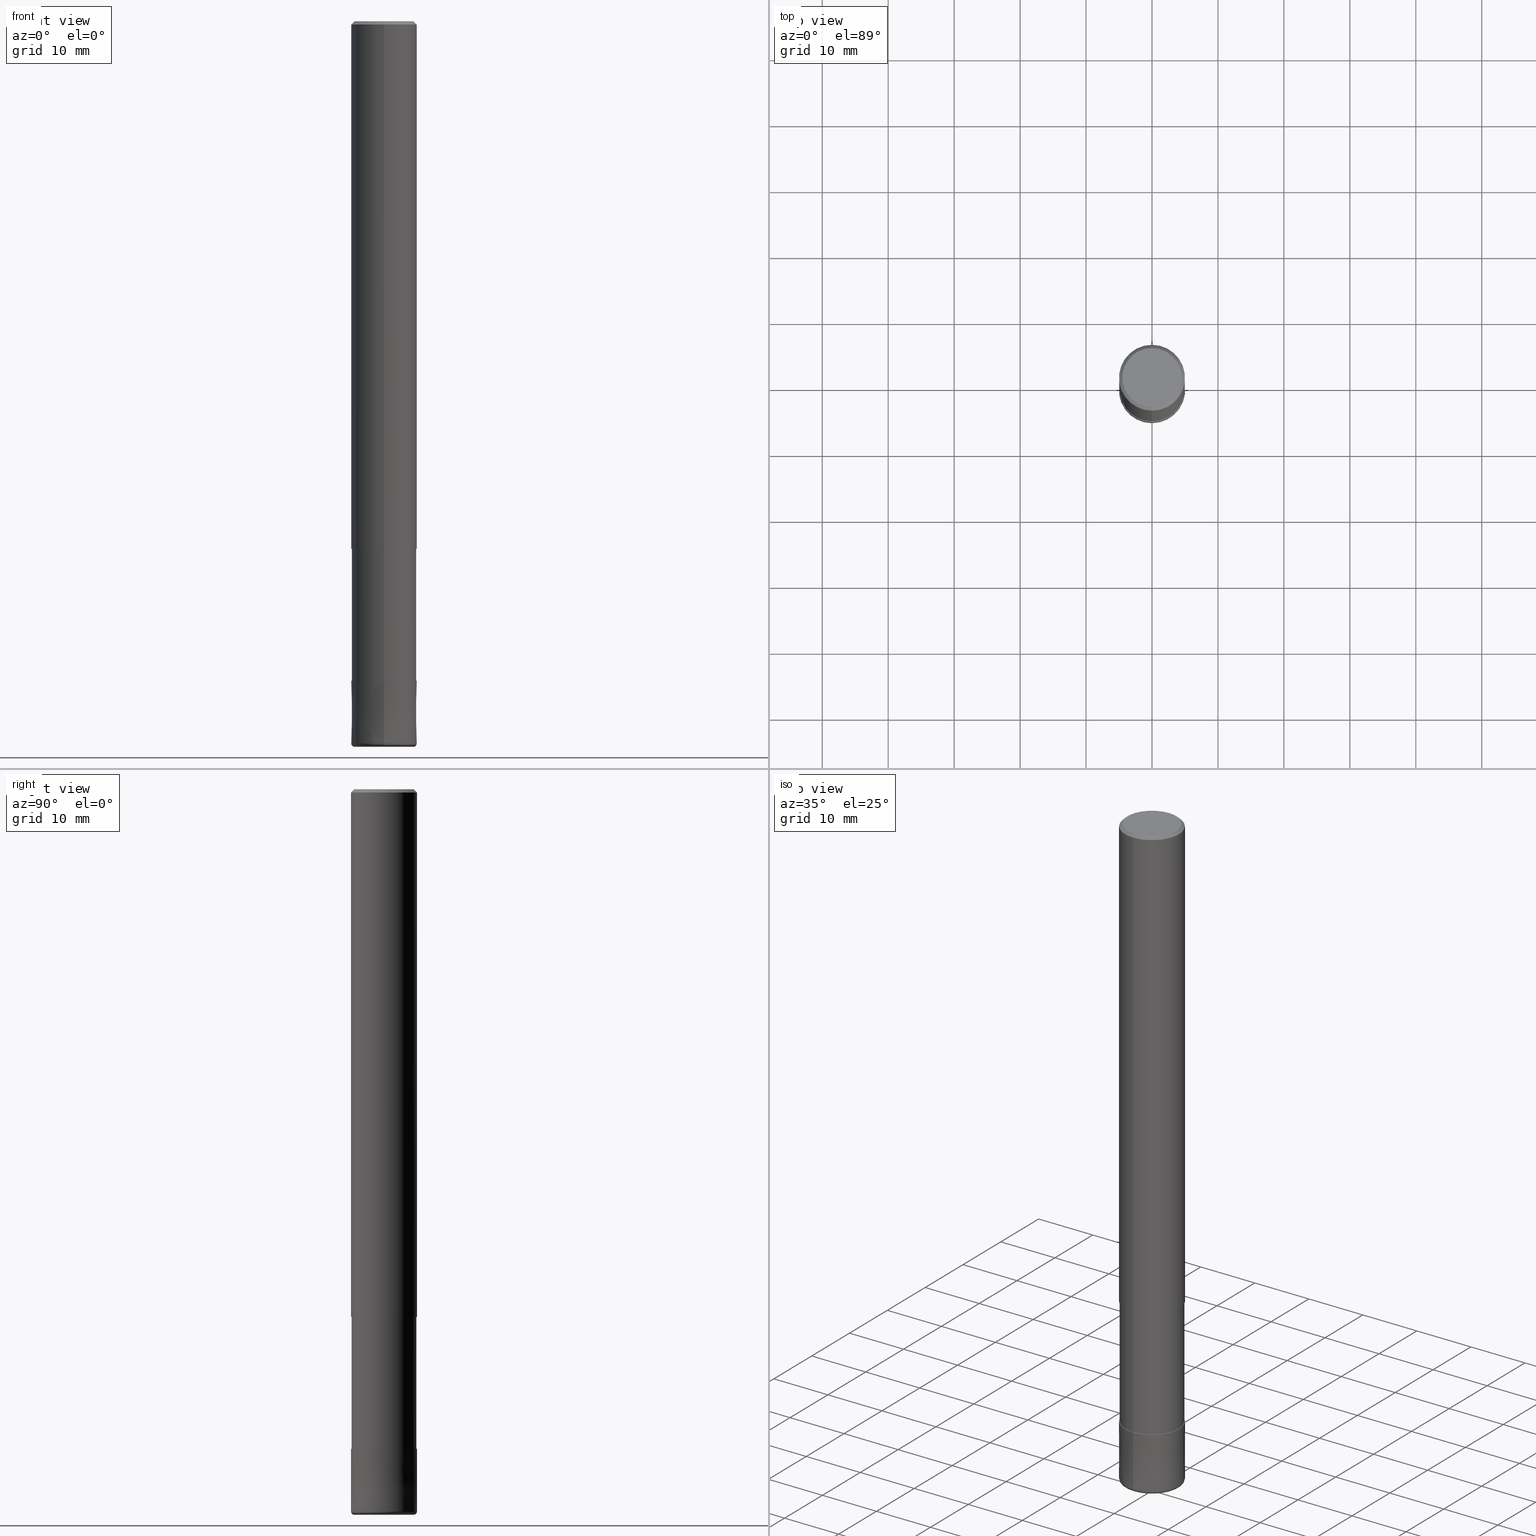
[diagram: canonical four-view strip — front | top / right | iso, engineering-drawing reading convention]
A machine part, canonical four-view strip (front | top / right | iso — engineering-drawing reading convention). The complete STEP part file that produces these views, byte-faithful:
ISO-10303-21;
HEADER;
FILE_DESCRIPTION(('no description'),'unknown implementation level');
FILE_NAME('HRRS4100-05-30-Huellk.stp','  ',('CIMSOURCE GmbH'),('CADClick - KiM GmbH - www.kimweb.de'),'unknown preprocess','ACIS','unknown authorization');
FILE_SCHEMA(('automotive_design'));
ENDSEC;
DATA;
#1=MECHANICAL_DESIGN_GEOMETRIC_PRESENTATION_REPRESENTATION(' ',(#14,#15,#16,#17,#18,#19,#20,#21,#22,#23,#24,#25,#26,#27,#28,#29,#30,#31,#32,#33,#34,#35,#36,#37,#38,#39,#40,#41,#42,#43,#44,#45,#46,#47,#48,#49,#50,#51,#52,#53,#54,#55,#56,#57,#58,#59,#60,#61,#62,#63,#64,#65,#66,#67,#68,#69,#70,#71,#72),#10);
#2=PRODUCT_DEFINITION_CONTEXT('',#73,'design');
#3=APPLICATION_PROTOCOL_DEFINITION('INTERNATIONAL STANDARD','automotive_design',1994,#73);
#4=PRODUCT_CATEGORY_RELATIONSHIP('NONE','NONE',#74,#75);
#5=SHAPE_DEFINITION_REPRESENTATION(#76,#77);
#6=PRODUCT_DEFINITION_CONTEXT('',#78,'design');
#7=APPLICATION_PROTOCOL_DEFINITION('INTERNATIONAL STANDARD','automotive_design',1994,#78);
#8=PRODUCT_CATEGORY_RELATIONSHIP('NONE','NONE',#79,#80);
#9=SHAPE_DEFINITION_REPRESENTATION(#81,#82);
#10= (GEOMETRIC_REPRESENTATION_CONTEXT(3)GLOBAL_UNCERTAINTY_ASSIGNED_CONTEXT((#85))GLOBAL_UNIT_ASSIGNED_CONTEXT((#87,#88,#89))REPRESENTATION_CONTEXT('NONE','WORKSPACE'));
#14=STYLED_ITEM('',(#91),#92);
#15=STYLED_ITEM('',(#93),#94);
#16=STYLED_ITEM('',(#95),#96);
#17=STYLED_ITEM('',(#97),#98);
#18=STYLED_ITEM('',(#99),#100);
#19=STYLED_ITEM('',(#101),#102);
#20=STYLED_ITEM('',(#103),#104);
#21=STYLED_ITEM('',(#105),#106);
#22=STYLED_ITEM('',(#107),#108);
#23=STYLED_ITEM('',(#109),#110);
#24=STYLED_ITEM('',(#111),#112);
#25=STYLED_ITEM('',(#113),#114);
#26=STYLED_ITEM('',(#115),#116);
#27=STYLED_ITEM('',(#117),#118);
#28=STYLED_ITEM('',(#119),#120);
#29=STYLED_ITEM('',(#121),#122);
#30=STYLED_ITEM('',(#123),#124);
#31=STYLED_ITEM('',(#125),#126);
#32=STYLED_ITEM('',(#127),#128);
#33=STYLED_ITEM('',(#129),#130);
#34=STYLED_ITEM('',(#131),#132);
#35=STYLED_ITEM('',(#133),#134);
#36=STYLED_ITEM('',(#135),#136);
#37=STYLED_ITEM('',(#137),#138);
#38=STYLED_ITEM('',(#139),#140);
#39=STYLED_ITEM('',(#141),#142);
#40=STYLED_ITEM('',(#143),#144);
#41=STYLED_ITEM('',(#145),#146);
#42=STYLED_ITEM('',(#147),#148);
#43=STYLED_ITEM('',(#149),#150);
#44=STYLED_ITEM('',(#151),#152);
#45=STYLED_ITEM('',(#153),#154);
#46=STYLED_ITEM('',(#155),#156);
#47=STYLED_ITEM('',(#157),#158);
#48=STYLED_ITEM('',(#159),#160);
#49=STYLED_ITEM('',(#161),#162);
#50=STYLED_ITEM('',(#163),#164);
#51=STYLED_ITEM('',(#165),#166);
#52=STYLED_ITEM('',(#167),#168);
#53=STYLED_ITEM('',(#169),#170);
#54=STYLED_ITEM('',(#171),#172);
#55=STYLED_ITEM('',(#173),#174);
#56=STYLED_ITEM('',(#175),#176);
#57=STYLED_ITEM('',(#177),#178);
#58=STYLED_ITEM('',(#179),#180);
#59=STYLED_ITEM('',(#181),#182);
#60=STYLED_ITEM('',(#183),#184);
#61=STYLED_ITEM('',(#185),#186);
#62=STYLED_ITEM('',(#187),#188);
#63=STYLED_ITEM('',(#189),#190);
#64=STYLED_ITEM('',(#191),#192);
#65=STYLED_ITEM('',(#193),#194);
#66=STYLED_ITEM('',(#195),#196);
#67=STYLED_ITEM('',(#197),#198);
#68=STYLED_ITEM('',(#199),#200);
#69=STYLED_ITEM('',(#201),#202);
#70=STYLED_ITEM('',(#203),#204);
#71=STYLED_ITEM('',(#205),#206);
#72=STYLED_ITEM('',(#207),#208);
#73=APPLICATION_CONTEXT(' ');
#74=PRODUCT_CATEGORY('part','NONE');
#75=PRODUCT_RELATED_PRODUCT_CATEGORY('detail',' ',(#209));
#76=PRODUCT_DEFINITION_SHAPE('NONE','NONE',#210);
#77=ADVANCED_BREP_SHAPE_REPRESENTATION('1',(#114,#211),#10);
#78=APPLICATION_CONTEXT(' ');
#79=PRODUCT_CATEGORY('part','NONE');
#80=PRODUCT_RELATED_PRODUCT_CATEGORY('detail',' ',(#212));
#81=PRODUCT_DEFINITION_SHAPE('NONE','NONE',#213);
#82=ADVANCED_BREP_SHAPE_REPRESENTATION('2',(#176,#214),#10);
#85=UNCERTAINTY_MEASURE_WITH_UNIT(LENGTH_MEASURE(1.0E-006),#87,'','');
#87= (CONVERSION_BASED_UNIT('MILLIMETRE',#217)LENGTH_UNIT()NAMED_UNIT(#220));
#88= (NAMED_UNIT(#222)PLANE_ANGLE_UNIT()SI_UNIT($,.RADIAN.));
#89= (NAMED_UNIT(#222)SOLID_ANGLE_UNIT()SI_UNIT($,.STERADIAN.));
#91=PRESENTATION_STYLE_ASSIGNMENT((#228));
#92=ADVANCED_FACE('',(#229),#230,.T.);
#93=PRESENTATION_STYLE_ASSIGNMENT((#231));
#94=EDGE_CURVE('',#208,#162,#232,.T.);
#95=PRESENTATION_STYLE_ASSIGNMENT((#233));
#96=EDGE_CURVE('',#166,#120,#234,.T.);
#97=PRESENTATION_STYLE_ASSIGNMENT((#235));
#98=ADVANCED_FACE('',(#236,#237),#238,.T.);
#99=PRESENTATION_STYLE_ASSIGNMENT((#239));
#100=ADVANCED_FACE('',(#240),#241,.T.);
#101=PRESENTATION_STYLE_ASSIGNMENT((#242));
#102=EDGE_CURVE('',#162,#182,#243,.T.);
#103=PRESENTATION_STYLE_ASSIGNMENT((#244));
#104=ADVANCED_FACE('',(#245),#246,.T.);
#105=PRESENTATION_STYLE_ASSIGNMENT((#247));
#106=EDGE_CURVE('',#150,#132,#248,.T.);
#107=PRESENTATION_STYLE_ASSIGNMENT((#249));
#108=VERTEX_POINT('',#250);
#109=PRESENTATION_STYLE_ASSIGNMENT((#251));
#110=EDGE_CURVE('',#198,#148,#252,.T.);
#111=PRESENTATION_STYLE_ASSIGNMENT((#253));
#112=EDGE_CURVE('',#178,#208,#254,.T.);
#113=PRESENTATION_STYLE_ASSIGNMENT((#255));
#114=MANIFOLD_SOLID_BREP('1',#256);
#115=PRESENTATION_STYLE_ASSIGNMENT((#257));
#116=EDGE_CURVE('',#148,#150,#258,.T.);
#117=PRESENTATION_STYLE_ASSIGNMENT((#259));
#118=VERTEX_POINT('',#260);
#119=PRESENTATION_STYLE_ASSIGNMENT((#261));
#120=VERTEX_POINT('',#262);
#121=PRESENTATION_STYLE_ASSIGNMENT((#263));
#122=ADVANCED_FACE('',(#264),#265,.T.);
#123=PRESENTATION_STYLE_ASSIGNMENT((#266));
#124=ADVANCED_FACE('',(#267),#268,.T.);
#125=PRESENTATION_STYLE_ASSIGNMENT((#269));
#126=EDGE_CURVE('',#120,#168,#270,.T.);
#127=PRESENTATION_STYLE_ASSIGNMENT((#271));
#128=EDGE_CURVE('',#194,#174,#272,.T.);
#129=PRESENTATION_STYLE_ASSIGNMENT((#273));
#130=EDGE_CURVE('',#118,#142,#274,.T.);
#131=PRESENTATION_STYLE_ASSIGNMENT((#275));
#132=VERTEX_POINT('',#276);
#133=PRESENTATION_STYLE_ASSIGNMENT((#277));
#134=EDGE_CURVE('',#168,#120,#278,.T.);
#135=PRESENTATION_STYLE_ASSIGNMENT((#279));
#136=ADVANCED_FACE('',(#280),#281,.T.);
#137=PRESENTATION_STYLE_ASSIGNMENT((#282));
#138=ADVANCED_FACE('',(#283),#284,.T.);
#139=PRESENTATION_STYLE_ASSIGNMENT((#285));
#140=ADVANCED_FACE('',(#286),#287,.T.);
#141=PRESENTATION_STYLE_ASSIGNMENT((#288));
#142=VERTEX_POINT('',#289);
#143=PRESENTATION_STYLE_ASSIGNMENT((#290));
#144=ADVANCED_FACE('',(#291),#292,.T.);
#145=PRESENTATION_STYLE_ASSIGNMENT((#293));
#146=EDGE_CURVE('',#174,#208,#294,.T.);
#147=PRESENTATION_STYLE_ASSIGNMENT((#295));
#148=VERTEX_POINT('',#296);
#149=PRESENTATION_STYLE_ASSIGNMENT((#297));
#150=VERTEX_POINT('',#298);
#151=PRESENTATION_STYLE_ASSIGNMENT((#299));
#152=EDGE_CURVE('',#132,#198,#300,.T.);
#153=PRESENTATION_STYLE_ASSIGNMENT((#301));
#154=EDGE_CURVE('',#142,#108,#302,.T.);
#155=PRESENTATION_STYLE_ASSIGNMENT((#303));
#156=EDGE_CURVE('',#182,#162,#304,.T.);
#157=PRESENTATION_STYLE_ASSIGNMENT((#305));
#158=ADVANCED_FACE('',(#306),#307,.T.);
#159=PRESENTATION_STYLE_ASSIGNMENT((#308));
#160=EDGE_CURVE('',#142,#118,#309,.T.);
#161=PRESENTATION_STYLE_ASSIGNMENT((#310));
#162=VERTEX_POINT('',#311);
#163=PRESENTATION_STYLE_ASSIGNMENT((#312));
#164=ADVANCED_FACE('',(#313),#314,.T.);
#165=PRESENTATION_STYLE_ASSIGNMENT((#315));
#166=VERTEX_POINT('',#316);
#167=PRESENTATION_STYLE_ASSIGNMENT((#317));
#168=VERTEX_POINT('',#318);
#169=PRESENTATION_STYLE_ASSIGNMENT((#319));
#170=ADVANCED_FACE('',(#320),#321,.T.);
#171=PRESENTATION_STYLE_ASSIGNMENT((#322));
#172=EDGE_CURVE('',#182,#178,#323,.T.);
#173=PRESENTATION_STYLE_ASSIGNMENT((#324));
#174=VERTEX_POINT('',#325);
#175=PRESENTATION_STYLE_ASSIGNMENT((#326));
#176=MANIFOLD_SOLID_BREP('2',#327);
#177=PRESENTATION_STYLE_ASSIGNMENT((#328));
#178=VERTEX_POINT('',#329);
#179=PRESENTATION_STYLE_ASSIGNMENT((#330));
#180=ADVANCED_FACE('',(#331),#332,.T.);
#181=PRESENTATION_STYLE_ASSIGNMENT((#333));
#182=VERTEX_POINT('',#334);
#183=PRESENTATION_STYLE_ASSIGNMENT((#335));
#184=EDGE_CURVE('',#166,#118,#336,.T.);
#185=PRESENTATION_STYLE_ASSIGNMENT((#337));
#186=EDGE_CURVE('',#166,#108,#338,.T.);
#187=PRESENTATION_STYLE_ASSIGNMENT((#339));
#188=EDGE_CURVE('',#174,#194,#340,.T.);
#189=PRESENTATION_STYLE_ASSIGNMENT((#341));
#190=EDGE_CURVE('',#150,#148,#342,.T.);
#191=PRESENTATION_STYLE_ASSIGNMENT((#343));
#192=EDGE_CURVE('',#108,#166,#344,.T.);
#193=PRESENTATION_STYLE_ASSIGNMENT((#345));
#194=VERTEX_POINT('',#346);
#195=PRESENTATION_STYLE_ASSIGNMENT((#347));
#196=EDGE_CURVE('',#178,#194,#348,.T.);
#197=PRESENTATION_STYLE_ASSIGNMENT((#349));
#198=VERTEX_POINT('',#350);
#199=PRESENTATION_STYLE_ASSIGNMENT((#351));
#200=EDGE_CURVE('',#198,#132,#352,.T.);
#201=PRESENTATION_STYLE_ASSIGNMENT((#353));
#202=EDGE_CURVE('',#208,#178,#354,.T.);
#203=PRESENTATION_STYLE_ASSIGNMENT((#355));
#204=EDGE_CURVE('',#168,#108,#356,.T.);
#205=PRESENTATION_STYLE_ASSIGNMENT((#357));
#206=ADVANCED_FACE('',(#358),#359,.T.);
#207=PRESENTATION_STYLE_ASSIGNMENT((#360));
#208=VERTEX_POINT('',#361);
#209=PRODUCT('1','1','PART-1-DESC',(#362));
#210=PRODUCT_DEFINITION('NONE','NONE',#363,#2);
#211=AXIS2_PLACEMENT_3D('',#364,#365,#366);
#212=PRODUCT('2','2','PART-2-DESC',(#367));
#213=PRODUCT_DEFINITION('NONE','NONE',#368,#6);
#214=AXIS2_PLACEMENT_3D('',#369,#370,#371);
#217=LENGTH_MEASURE_WITH_UNIT(LENGTH_MEASURE(1.0),#372);
#220=DIMENSIONAL_EXPONENTS(1.0,0.0,0.0,0.0,0.0,0.0,0.0);
#222=DIMENSIONAL_EXPONENTS(0.0,0.0,0.0,0.0,0.0,0.0,0.0);
#228=SURFACE_STYLE_USAGE(.BOTH.,#373);
#229=FACE_OUTER_BOUND('',#374,.T.);
#230=CYLINDRICAL_SURFACE('',#375,5.0);
#231=CURVE_STYLE('',#376,POSITIVE_LENGTH_MEASURE(1.0E-006),#377);
#232=LINE('',#378,#379);
#233=CURVE_STYLE('',#380,POSITIVE_LENGTH_MEASURE(1.0E-006),#381);
#234=CIRCLE('',#382,0.499999999999995);
#235=SURFACE_STYLE_USAGE(.BOTH.,#383);
#236=FACE_OUTER_BOUND('',#384,.T.);
#237=FACE_BOUND('',#385,.T.);
#238=PLANE('',#386);
#239=SURFACE_STYLE_USAGE(.BOTH.,#387);
#240=FACE_OUTER_BOUND('',#388,.T.);
#241=PLANE('',#389);
#242=CURVE_STYLE('',#390,POSITIVE_LENGTH_MEASURE(1.0E-006),#391);
#243=CIRCLE('',#392,4.5);
#244=SURFACE_STYLE_USAGE(.BOTH.,#393);
#245=FACE_OUTER_BOUND('',#394,.T.);
#246=CONICAL_SURFACE('',#395,4.75,0.785398163397448);
#247=CURVE_STYLE('',#396,POSITIVE_LENGTH_MEASURE(1.0E-006),#397);
#248=LINE('',#398,#399);
#249=POINT_STYLE(' ',#400,POSITIVE_LENGTH_MEASURE(1.0E-006),#401);
#250=CARTESIAN_POINT('',(0.0,5.0,-109.5));
#251=CURVE_STYLE('',#402,POSITIVE_LENGTH_MEASURE(1.0E-006),#403);
#252=LINE('',#404,#405);
#253=CURVE_STYLE('',#406,POSITIVE_LENGTH_MEASURE(1.0E-006),#407);
#254=CIRCLE('',#408,5.0);
#255=SURFACE_STYLE_USAGE(.BOTH.,#409);
#256=CLOSED_SHELL('',(#180,#140,#124,#98,#100,#104,#92,#170,#138));
#257=CURVE_STYLE('',#410,POSITIVE_LENGTH_MEASURE(1.0E-006),#411);
#258=CIRCLE('',#412,4.90995);
#259=POINT_STYLE(' ',#413,POSITIVE_LENGTH_MEASURE(1.0E-006),#414);
#260=CARTESIAN_POINT('',(6.1229093084765E-016,-4.9999,-100.0));
#261=POINT_STYLE(' ',#415,POSITIVE_LENGTH_MEASURE(1.0E-006),#416);
#262=CARTESIAN_POINT('',(5.5107285922007E-016,-4.5,-110.0));
#263=SURFACE_STYLE_USAGE(.BOTH.,#417);
#264=FACE_OUTER_BOUND('',#418,.T.);
#265=CONICAL_SURFACE('',#419,4.99995,1.05263157890604E-005);
#266=SURFACE_STYLE_USAGE(.BOTH.,#420);
#267=FACE_OUTER_BOUND('',#421,.T.);
#268=CONICAL_SURFACE('',#422,4.75,0.785398163397448);
#269=CURVE_STYLE('',#423,POSITIVE_LENGTH_MEASURE(1.0E-006),#424);
#270=CIRCLE('',#425,4.5);
#271=CURVE_STYLE('',#426,POSITIVE_LENGTH_MEASURE(1.0E-006),#427);
#272=CIRCLE('',#428,5.0);
#273=CURVE_STYLE('',#429,POSITIVE_LENGTH_MEASURE(1.0E-006),#430);
#274=CIRCLE('',#431,4.9999);
#275=POINT_STYLE(' ',#432,POSITIVE_LENGTH_MEASURE(1.0E-006),#433);
#276=CARTESIAN_POINT('',(0.0,4.90995,-100.0));
#277=CURVE_STYLE('',#434,POSITIVE_LENGTH_MEASURE(1.0E-006),#435);
#278=CIRCLE('',#436,4.5);
#279=SURFACE_STYLE_USAGE(.BOTH.,#437);
#280=FACE_OUTER_BOUND('',#438,.T.);
#281=PLANE('',#439);
#282=SURFACE_STYLE_USAGE(.BOTH.,#440);
#283=FACE_OUTER_BOUND('',#441,.T.);
#284=PLANE('',#442);
#285=SURFACE_STYLE_USAGE(.BOTH.,#443);
#286=FACE_OUTER_BOUND('',#444,.T.);
#287=CYLINDRICAL_SURFACE('',#445,5.0);
#288=POINT_STYLE(' ',#446,POSITIVE_LENGTH_MEASURE(1.0E-006),#447);
#289=CARTESIAN_POINT('',(0.0,4.9999,-100.0));
#290=SURFACE_STYLE_USAGE(.BOTH.,#448);
#291=FACE_OUTER_BOUND('',#449,.T.);
#292=PLANE('',#450);
#293=CURVE_STYLE('',#451,POSITIVE_LENGTH_MEASURE(1.0E-006),#452);
#294=LINE('',#453,#454);
#295=POINT_STYLE(' ',#455,POSITIVE_LENGTH_MEASURE(1.0E-006),#456);
#296=CARTESIAN_POINT('',(6.01275596695018E-016,-4.90995,-80.0));
#297=POINT_STYLE(' ',#457,POSITIVE_LENGTH_MEASURE(1.0E-006),#458);
#298=CARTESIAN_POINT('',(0.0,4.90995,-80.0));
#299=CURVE_STYLE('',#459,POSITIVE_LENGTH_MEASURE(1.0E-006),#460);
#300=CIRCLE('',#461,4.90995);
#301=CURVE_STYLE('',#462,POSITIVE_LENGTH_MEASURE(1.0E-006),#463);
#302=LINE('',#464,#465);
#303=CURVE_STYLE('',#466,POSITIVE_LENGTH_MEASURE(1.0E-006),#467);
#304=CIRCLE('',#468,4.5);
#305=SURFACE_STYLE_USAGE(.BOTH.,#469);
#306=FACE_OUTER_BOUND('',#470,.T.);
#307=TOROIDAL_SURFACE('',#471,4.5,0.499999999999995);
#308=CURVE_STYLE('',#472,POSITIVE_LENGTH_MEASURE(1.0E-006),#473);
#309=CIRCLE('',#474,4.9999);
#310=POINT_STYLE(' ',#475,POSITIVE_LENGTH_MEASURE(1.0E-006),#476);
#311=CARTESIAN_POINT('',(5.5107285922007E-016,-4.5,0.0));
#312=SURFACE_STYLE_USAGE(.BOTH.,#477);
#313=FACE_OUTER_BOUND('',#478,.T.);
#314=TOROIDAL_SURFACE('',#479,4.5,0.499999999999995);
#315=POINT_STYLE(' ',#480,POSITIVE_LENGTH_MEASURE(1.0E-006),#481);
#316=CARTESIAN_POINT('',(6.12303176911189E-016,-5.0,-109.5));
#317=POINT_STYLE(' ',#482,POSITIVE_LENGTH_MEASURE(1.0E-006),#483);
#318=CARTESIAN_POINT('',(0.0,4.5,-110.0));
#319=SURFACE_STYLE_USAGE(.BOTH.,#484);
#320=FACE_OUTER_BOUND('',#485,.T.);
#321=CYLINDRICAL_SURFACE('',#486,4.90995);
#322=CURVE_STYLE('',#487,POSITIVE_LENGTH_MEASURE(1.0E-006),#488);
#323=LINE('',#489,#490);
#324=POINT_STYLE(' ',#491,POSITIVE_LENGTH_MEASURE(1.0E-006),#492);
#325=CARTESIAN_POINT('',(6.12303176911189E-016,-5.0,-80.0));
#326=SURFACE_STYLE_USAGE(.BOTH.,#493);
#327=CLOSED_SHELL('',(#158,#122,#144,#206,#164,#136));
#328=POINT_STYLE(' ',#494,POSITIVE_LENGTH_MEASURE(1.0E-006),#495);
#329=CARTESIAN_POINT('',(0.0,5.0,-0.5));
#330=SURFACE_STYLE_USAGE(.BOTH.,#496);
#331=FACE_OUTER_BOUND('',#497,.T.);
#332=CYLINDRICAL_SURFACE('',#498,4.90995);
#333=POINT_STYLE(' ',#499,POSITIVE_LENGTH_MEASURE(1.0E-006),#500);
#334=CARTESIAN_POINT('',(0.0,4.5,0.0));
#335=CURVE_STYLE('',#501,POSITIVE_LENGTH_MEASURE(1.0E-006),#502);
#336=LINE('',#503,#504);
#337=CURVE_STYLE('',#505,POSITIVE_LENGTH_MEASURE(1.0E-006),#506);
#338=CIRCLE('',#507,5.0);
#339=CURVE_STYLE('',#508,POSITIVE_LENGTH_MEASURE(1.0E-006),#509);
#340=CIRCLE('',#510,5.0);
#341=CURVE_STYLE('',#511,POSITIVE_LENGTH_MEASURE(1.0E-006),#512);
#342=CIRCLE('',#513,4.90995);
#343=CURVE_STYLE('',#514,POSITIVE_LENGTH_MEASURE(1.0E-006),#515);
#344=CIRCLE('',#516,5.0);
#345=POINT_STYLE(' ',#517,POSITIVE_LENGTH_MEASURE(1.0E-006),#518);
#346=CARTESIAN_POINT('',(0.0,5.0,-80.0));
#347=CURVE_STYLE('',#519,POSITIVE_LENGTH_MEASURE(1.0E-006),#520);
#348=LINE('',#521,#522);
#349=POINT_STYLE(' ',#523,POSITIVE_LENGTH_MEASURE(1.0E-006),#524);
#350=CARTESIAN_POINT('',(6.01275596695018E-016,-4.90995,-100.0));
#351=CURVE_STYLE('',#525,POSITIVE_LENGTH_MEASURE(1.0E-006),#526);
#352=CIRCLE('',#527,4.90995);
#353=CURVE_STYLE('',#528,POSITIVE_LENGTH_MEASURE(1.0E-006),#529);
#354=CIRCLE('',#530,5.0);
#355=CURVE_STYLE('',#531,POSITIVE_LENGTH_MEASURE(1.0E-006),#532);
#356=CIRCLE('',#533,0.499999999999995);
#357=SURFACE_STYLE_USAGE(.BOTH.,#534);
#358=FACE_OUTER_BOUND('',#535,.T.);
#359=CONICAL_SURFACE('',#536,4.99995,1.05263157890604E-005);
#360=POINT_STYLE(' ',#537,POSITIVE_LENGTH_MEASURE(1.0E-006),#538);
#361=CARTESIAN_POINT('',(6.12303176911189E-016,-5.0,-0.5));
#362=PRODUCT_CONTEXT('',#73,'mechanical');
#363=PRODUCT_DEFINITION_FORMATION_WITH_SPECIFIED_SOURCE(' ','NONE',#209,.NOT_KNOWN.);
#364=CARTESIAN_POINT('',(0.0,0.0,0.0));
#365=DIRECTION('',(0.0,0.0,1.0));
#366=DIRECTION('',(1.0,0.0,0.0));
#367=PRODUCT_CONTEXT('',#78,'mechanical');
#368=PRODUCT_DEFINITION_FORMATION_WITH_SPECIFIED_SOURCE(' ','NONE',#212,.NOT_KNOWN.);
#369=CARTESIAN_POINT('',(0.0,0.0,0.0));
#370=DIRECTION('',(0.0,0.0,1.0));
#371=DIRECTION('',(1.0,0.0,0.0));
#372= (NAMED_UNIT(#220)LENGTH_UNIT()SI_UNIT(.MILLI.,.METRE.));
#373=SURFACE_SIDE_STYLE('',(#540));
#374=EDGE_LOOP('',(#541,#542,#543,#544));
#375=AXIS2_PLACEMENT_3D('',#545,#546,#547);
#376=DRAUGHTING_PRE_DEFINED_CURVE_FONT('continuous');
#377=COLOUR_RGB('',0.498039215803146,0.498039215803146,0.498039215803146);
#378=CARTESIAN_POINT('',(5.81688018065629E-016,-4.75,-0.25));
#379=VECTOR('',#548,1.0);
#380=DRAUGHTING_PRE_DEFINED_CURVE_FONT('continuous');
#381=COLOUR_RGB('',0.800000011920929,0.800000011920929,0.800000011920929);
#382=AXIS2_PLACEMENT_3D('',#549,#550,#551);
#383=SURFACE_SIDE_STYLE('',(#552));
#384=EDGE_LOOP('',(#553,#554));
#385=EDGE_LOOP('',(#555,#556));
#386=AXIS2_PLACEMENT_3D('',#557,#558,#559);
#387=SURFACE_SIDE_STYLE('',(#560));
#388=EDGE_LOOP('',(#561,#562));
#389=AXIS2_PLACEMENT_3D('',#563,#564,#565);
#390=DRAUGHTING_PRE_DEFINED_CURVE_FONT('continuous');
#391=COLOUR_RGB('',0.498039215803146,0.498039215803146,0.498039215803146);
#392=AXIS2_PLACEMENT_3D('',#566,#567,#568);
#393=SURFACE_SIDE_STYLE('',(#569));
#394=EDGE_LOOP('',(#570,#571,#572,#573));
#395=AXIS2_PLACEMENT_3D('',#574,#575,#576);
#396=DRAUGHTING_PRE_DEFINED_CURVE_FONT('continuous');
#397=COLOUR_RGB('',0.498039215803146,0.498039215803146,0.498039215803146);
#398=CARTESIAN_POINT('',(-6.01275596695018E-016,4.90995,-90.0));
#399=VECTOR('',#577,1.0);
#400=PRE_DEFINED_MARKER('');
#401=COLOUR_RGB('',0.800000011920929,0.800000011920929,0.800000011920929);
#402=DRAUGHTING_PRE_DEFINED_CURVE_FONT('continuous');
#403=COLOUR_RGB('',0.498039215803146,0.498039215803146,0.498039215803146);
#404=CARTESIAN_POINT('',(6.01275596695018E-016,-4.90995,-90.0));
#405=VECTOR('',#578,1.0);
#406=DRAUGHTING_PRE_DEFINED_CURVE_FONT('continuous');
#407=COLOUR_RGB('',0.498039215803146,0.498039215803146,0.498039215803146);
#408=AXIS2_PLACEMENT_3D('',#579,#580,#581);
#409=SURFACE_SIDE_STYLE('',(#582));
#410=DRAUGHTING_PRE_DEFINED_CURVE_FONT('continuous');
#411=COLOUR_RGB('',0.498039215803146,0.498039215803146,0.498039215803146);
#412=AXIS2_PLACEMENT_3D('',#583,#584,#585);
#413=PRE_DEFINED_MARKER('');
#414=COLOUR_RGB('',0.800000011920929,0.800000011920929,0.800000011920929);
#415=PRE_DEFINED_MARKER('');
#416=COLOUR_RGB('',0.800000011920929,0.800000011920929,0.800000011920929);
#417=SURFACE_SIDE_STYLE('',(#586));
#418=EDGE_LOOP('',(#587,#588,#589,#590));
#419=AXIS2_PLACEMENT_3D('',#591,#592,#593);
#420=SURFACE_SIDE_STYLE('',(#594));
#421=EDGE_LOOP('',(#595,#596,#597,#598));
#422=AXIS2_PLACEMENT_3D('',#599,#600,#601);
#423=DRAUGHTING_PRE_DEFINED_CURVE_FONT('continuous');
#424=COLOUR_RGB('',0.800000011920929,0.800000011920929,0.800000011920929);
#425=AXIS2_PLACEMENT_3D('',#602,#603,#604);
#426=DRAUGHTING_PRE_DEFINED_CURVE_FONT('continuous');
#427=COLOUR_RGB('',0.498039215803146,0.498039215803146,0.498039215803146);
#428=AXIS2_PLACEMENT_3D('',#605,#606,#607);
#429=DRAUGHTING_PRE_DEFINED_CURVE_FONT('continuous');
#430=COLOUR_RGB('',0.800000011920929,0.800000011920929,0.800000011920929);
#431=AXIS2_PLACEMENT_3D('',#608,#609,#610);
#432=PRE_DEFINED_MARKER('');
#433=COLOUR_RGB('',0.498039215803146,0.498039215803146,0.498039215803146);
#434=DRAUGHTING_PRE_DEFINED_CURVE_FONT('continuous');
#435=COLOUR_RGB('',0.800000011920929,0.800000011920929,0.800000011920929);
#436=AXIS2_PLACEMENT_3D('',#611,#612,#613);
#437=SURFACE_SIDE_STYLE('',(#614));
#438=EDGE_LOOP('',(#615,#616));
#439=AXIS2_PLACEMENT_3D('',#617,#618,#619);
#440=SURFACE_SIDE_STYLE('',(#620));
#441=EDGE_LOOP('',(#621,#622));
#442=AXIS2_PLACEMENT_3D('',#623,#624,#625);
#443=SURFACE_SIDE_STYLE('',(#626));
#444=EDGE_LOOP('',(#627,#628,#629,#630));
#445=AXIS2_PLACEMENT_3D('',#631,#632,#633);
#446=PRE_DEFINED_MARKER('');
#447=COLOUR_RGB('',0.800000011920929,0.800000011920929,0.800000011920929);
#448=SURFACE_SIDE_STYLE('',(#634));
#449=EDGE_LOOP('',(#635,#636));
#450=AXIS2_PLACEMENT_3D('',#637,#638,#639);
#451=DRAUGHTING_PRE_DEFINED_CURVE_FONT('continuous');
#452=COLOUR_RGB('',0.498039215803146,0.498039215803146,0.498039215803146);
#453=CARTESIAN_POINT('',(6.12303176911189E-016,-5.0,-40.25));
#454=VECTOR('',#640,1.0);
#455=PRE_DEFINED_MARKER('');
#456=COLOUR_RGB('',0.498039215803146,0.498039215803146,0.498039215803146);
#457=PRE_DEFINED_MARKER('');
#458=COLOUR_RGB('',0.498039215803146,0.498039215803146,0.498039215803146);
#459=DRAUGHTING_PRE_DEFINED_CURVE_FONT('continuous');
#460=COLOUR_RGB('',0.498039215803146,0.498039215803146,0.498039215803146);
#461=AXIS2_PLACEMENT_3D('',#641,#642,#643);
#462=DRAUGHTING_PRE_DEFINED_CURVE_FONT('continuous');
#463=COLOUR_RGB('',0.800000011920929,0.800000011920929,0.800000011920929);
#464=CARTESIAN_POINT('',(-6.1229705387942E-016,4.99995,-104.75));
#465=VECTOR('',#644,1.0);
#466=DRAUGHTING_PRE_DEFINED_CURVE_FONT('continuous');
#467=COLOUR_RGB('',0.498039215803146,0.498039215803146,0.498039215803146);
#468=AXIS2_PLACEMENT_3D('',#645,#646,#647);
#469=SURFACE_SIDE_STYLE('',(#648));
#470=EDGE_LOOP('',(#649,#650,#651,#652));
#471=AXIS2_PLACEMENT_3D('',#653,#654,#655);
#472=DRAUGHTING_PRE_DEFINED_CURVE_FONT('continuous');
#473=COLOUR_RGB('',0.800000011920929,0.800000011920929,0.800000011920929);
#474=AXIS2_PLACEMENT_3D('',#656,#657,#658);
#475=PRE_DEFINED_MARKER('');
#476=COLOUR_RGB('',0.498039215803146,0.498039215803146,0.498039215803146);
#477=SURFACE_SIDE_STYLE('',(#659));
#478=EDGE_LOOP('',(#660,#661,#662,#663));
#479=AXIS2_PLACEMENT_3D('',#664,#665,#666);
#480=PRE_DEFINED_MARKER('');
#481=COLOUR_RGB('',0.800000011920929,0.800000011920929,0.800000011920929);
#482=PRE_DEFINED_MARKER('');
#483=COLOUR_RGB('',0.800000011920929,0.800000011920929,0.800000011920929);
#484=SURFACE_SIDE_STYLE('',(#667));
#485=EDGE_LOOP('',(#668,#669,#670,#671));
#486=AXIS2_PLACEMENT_3D('',#672,#673,#674);
#487=DRAUGHTING_PRE_DEFINED_CURVE_FONT('continuous');
#488=COLOUR_RGB('',0.498039215803146,0.498039215803146,0.498039215803146);
#489=CARTESIAN_POINT('',(-5.81688018065629E-016,4.75,-0.25));
#490=VECTOR('',#675,1.0);
#491=PRE_DEFINED_MARKER('');
#492=COLOUR_RGB('',0.498039215803146,0.498039215803146,0.498039215803146);
#493=SURFACE_SIDE_STYLE('',(#676));
#494=PRE_DEFINED_MARKER('');
#495=COLOUR_RGB('',0.498039215803146,0.498039215803146,0.498039215803146);
#496=SURFACE_SIDE_STYLE('',(#677));
#497=EDGE_LOOP('',(#678,#679,#680,#681));
#498=AXIS2_PLACEMENT_3D('',#682,#683,#684);
#499=PRE_DEFINED_MARKER('');
#500=COLOUR_RGB('',0.498039215803146,0.498039215803146,0.498039215803146);
#501=DRAUGHTING_PRE_DEFINED_CURVE_FONT('continuous');
#502=COLOUR_RGB('',0.800000011920929,0.800000011920929,0.800000011920929);
#503=CARTESIAN_POINT('',(6.1229705387942E-016,-4.99995,-104.75));
#504=VECTOR('',#685,1.0);
#505=DRAUGHTING_PRE_DEFINED_CURVE_FONT('continuous');
#506=COLOUR_RGB('',0.800000011920929,0.800000011920929,0.800000011920929);
#507=AXIS2_PLACEMENT_3D('',#686,#687,#688);
#508=DRAUGHTING_PRE_DEFINED_CURVE_FONT('continuous');
#509=COLOUR_RGB('',0.498039215803146,0.498039215803146,0.498039215803146);
#510=AXIS2_PLACEMENT_3D('',#689,#690,#691);
#511=DRAUGHTING_PRE_DEFINED_CURVE_FONT('continuous');
#512=COLOUR_RGB('',0.498039215803146,0.498039215803146,0.498039215803146);
#513=AXIS2_PLACEMENT_3D('',#692,#693,#694);
#514=DRAUGHTING_PRE_DEFINED_CURVE_FONT('continuous');
#515=COLOUR_RGB('',0.800000011920929,0.800000011920929,0.800000011920929);
#516=AXIS2_PLACEMENT_3D('',#695,#696,#697);
#517=PRE_DEFINED_MARKER('');
#518=COLOUR_RGB('',0.498039215803146,0.498039215803146,0.498039215803146);
#519=DRAUGHTING_PRE_DEFINED_CURVE_FONT('continuous');
#520=COLOUR_RGB('',0.498039215803146,0.498039215803146,0.498039215803146);
#521=CARTESIAN_POINT('',(-6.12303176911189E-016,5.0,-40.25));
#522=VECTOR('',#698,1.0);
#523=PRE_DEFINED_MARKER('');
#524=COLOUR_RGB('',0.498039215803146,0.498039215803146,0.498039215803146);
#525=DRAUGHTING_PRE_DEFINED_CURVE_FONT('continuous');
#526=COLOUR_RGB('',0.498039215803146,0.498039215803146,0.498039215803146);
#527=AXIS2_PLACEMENT_3D('',#699,#700,#701);
#528=DRAUGHTING_PRE_DEFINED_CURVE_FONT('continuous');
#529=COLOUR_RGB('',0.498039215803146,0.498039215803146,0.498039215803146);
#530=AXIS2_PLACEMENT_3D('',#702,#703,#704);
#531=DRAUGHTING_PRE_DEFINED_CURVE_FONT('continuous');
#532=COLOUR_RGB('',0.800000011920929,0.800000011920929,0.800000011920929);
#533=AXIS2_PLACEMENT_3D('',#705,#706,#707);
#534=SURFACE_SIDE_STYLE('',(#708));
#535=EDGE_LOOP('',(#709,#710,#711,#712));
#536=AXIS2_PLACEMENT_3D('',#713,#714,#715);
#537=PRE_DEFINED_MARKER('');
#538=COLOUR_RGB('',0.498039215803146,0.498039215803146,0.498039215803146);
#540=SURFACE_STYLE_FILL_AREA(#716);
#541=ORIENTED_EDGE('',*,*,#196,.T.);
#542=ORIENTED_EDGE('',*,*,#188,.F.);
#543=ORIENTED_EDGE('',*,*,#146,.T.);
#544=ORIENTED_EDGE('',*,*,#202,.T.);
#545=CARTESIAN_POINT('',(0.0,0.0,-40.25));
#546=DIRECTION('',(-0.0,-0.0,1.0));
#547=DIRECTION('',(0.0,1.0,0.0));
#548=DIRECTION('',(-8.65927457071936E-017,0.707106781186548,0.707106781186548));
#549=CARTESIAN_POINT('',(5.5107285922007E-016,-4.5,-109.5));
#550=DIRECTION('',(1.0,1.22460635382238E-016,0.0));
#551=DIRECTION('',(1.22460635382238E-016,-1.0,-0.0));
#552=SURFACE_STYLE_FILL_AREA(#717);
#553=ORIENTED_EDGE('',*,*,#128,.T.);
#554=ORIENTED_EDGE('',*,*,#188,.T.);
#555=ORIENTED_EDGE('',*,*,#190,.F.);
#556=ORIENTED_EDGE('',*,*,#116,.F.);
#557=CARTESIAN_POINT('',(0.0,2.5,-80.0));
#558=DIRECTION('',(0.0,0.0,-1.0));
#559=DIRECTION('',(0.0,1.0,0.0));
#560=SURFACE_STYLE_FILL_AREA(#718);
#561=ORIENTED_EDGE('',*,*,#156,.F.);
#562=ORIENTED_EDGE('',*,*,#102,.F.);
#563=CARTESIAN_POINT('',(0.0,2.25,0.0));
#564=DIRECTION('',(-0.0,0.0,1.0));
#565=DIRECTION('',(0.0,-1.0,0.0));
#566=CARTESIAN_POINT('',(0.0,0.0,0.0));
#567=DIRECTION('',(0.0,0.0,-1.0));
#568=DIRECTION('',(0.0,1.0,0.0));
#569=SURFACE_STYLE_FILL_AREA(#719);
#570=ORIENTED_EDGE('',*,*,#172,.T.);
#571=ORIENTED_EDGE('',*,*,#202,.F.);
#572=ORIENTED_EDGE('',*,*,#94,.T.);
#573=ORIENTED_EDGE('',*,*,#102,.T.);
#574=CARTESIAN_POINT('',(0.0,0.0,-0.25));
#575=DIRECTION('',(0.0,-0.0,-1.0));
#576=DIRECTION('',(0.0,1.0,0.0));
#577=DIRECTION('',(0.0,0.0,-1.0));
#578=DIRECTION('',(-0.0,-0.0,1.0));
#579=CARTESIAN_POINT('',(0.0,0.0,-0.5));
#580=DIRECTION('',(0.0,0.0,-1.0));
#581=DIRECTION('',(0.0,1.0,0.0));
#582=SURFACE_STYLE_FILL_AREA(#720);
#583=CARTESIAN_POINT('',(0.0,0.0,-80.0));
#584=DIRECTION('',(0.0,0.0,-1.0));
#585=DIRECTION('',(0.0,1.0,0.0));
#586=SURFACE_STYLE_FILL_AREA(#721);
#587=ORIENTED_EDGE('',*,*,#154,.F.);
#588=ORIENTED_EDGE('',*,*,#160,.T.);
#589=ORIENTED_EDGE('',*,*,#184,.F.);
#590=ORIENTED_EDGE('',*,*,#192,.F.);
#591=CARTESIAN_POINT('',(0.0,0.0,-104.75));
#592=DIRECTION('',(0.0,-0.0,-1.0));
#593=DIRECTION('',(0.0,1.0,0.0));
#594=SURFACE_STYLE_FILL_AREA(#722);
#595=ORIENTED_EDGE('',*,*,#172,.F.);
#596=ORIENTED_EDGE('',*,*,#156,.T.);
#597=ORIENTED_EDGE('',*,*,#94,.F.);
#598=ORIENTED_EDGE('',*,*,#112,.F.);
#599=CARTESIAN_POINT('',(0.0,0.0,-0.25));
#600=DIRECTION('',(0.0,-0.0,-1.0));
#601=DIRECTION('',(0.0,1.0,0.0));
#602=CARTESIAN_POINT('',(0.0,0.0,-110.0));
#603=DIRECTION('',(0.0,0.0,-1.0));
#604=DIRECTION('',(0.0,1.0,0.0));
#605=CARTESIAN_POINT('',(0.0,0.0,-80.0));
#606=DIRECTION('',(0.0,0.0,-1.0));
#607=DIRECTION('',(0.0,1.0,0.0));
#608=CARTESIAN_POINT('',(0.0,0.0,-100.0));
#609=DIRECTION('',(0.0,0.0,-1.0));
#610=DIRECTION('',(0.0,1.0,0.0));
#611=CARTESIAN_POINT('',(0.0,0.0,-110.0));
#612=DIRECTION('',(0.0,0.0,-1.0));
#613=DIRECTION('',(0.0,1.0,0.0));
#614=SURFACE_STYLE_FILL_AREA(#723);
#615=ORIENTED_EDGE('',*,*,#134,.T.);
#616=ORIENTED_EDGE('',*,*,#126,.T.);
#617=CARTESIAN_POINT('',(0.0,2.25,-110.0));
#618=DIRECTION('',(0.0,0.0,-1.0));
#619=DIRECTION('',(0.0,1.0,0.0));
#620=SURFACE_STYLE_FILL_AREA(#724);
#621=ORIENTED_EDGE('',*,*,#152,.T.);
#622=ORIENTED_EDGE('',*,*,#200,.T.);
#623=CARTESIAN_POINT('',(0.0,2.454975,-100.0));
#624=DIRECTION('',(0.0,0.0,-1.0));
#625=DIRECTION('',(0.0,1.0,0.0));
#626=SURFACE_STYLE_FILL_AREA(#725);
#627=ORIENTED_EDGE('',*,*,#196,.F.);
#628=ORIENTED_EDGE('',*,*,#112,.T.);
#629=ORIENTED_EDGE('',*,*,#146,.F.);
#630=ORIENTED_EDGE('',*,*,#128,.F.);
#631=CARTESIAN_POINT('',(0.0,0.0,-40.25));
#632=DIRECTION('',(-0.0,-0.0,1.0));
#633=DIRECTION('',(0.0,1.0,0.0));
#634=SURFACE_STYLE_FILL_AREA(#726);
#635=ORIENTED_EDGE('',*,*,#160,.F.);
#636=ORIENTED_EDGE('',*,*,#130,.F.);
#637=CARTESIAN_POINT('',(0.0,2.49995,-100.0));
#638=DIRECTION('',(-0.0,0.0,1.0));
#639=DIRECTION('',(0.0,-1.0,0.0));
#640=DIRECTION('',(-0.0,-0.0,1.0));
#641=CARTESIAN_POINT('',(0.0,0.0,-100.0));
#642=DIRECTION('',(0.0,0.0,-1.0));
#643=DIRECTION('',(0.0,1.0,0.0));
#644=DIRECTION('',(-1.28905931973861E-021,1.0526315788866E-005,-0.999999999944598));
#645=CARTESIAN_POINT('',(0.0,0.0,0.0));
#646=DIRECTION('',(0.0,0.0,-1.0));
#647=DIRECTION('',(0.0,1.0,0.0));
#648=SURFACE_STYLE_FILL_AREA(#727);
#649=ORIENTED_EDGE('',*,*,#96,.F.);
#650=ORIENTED_EDGE('',*,*,#186,.T.);
#651=ORIENTED_EDGE('',*,*,#204,.F.);
#652=ORIENTED_EDGE('',*,*,#126,.F.);
#653=CARTESIAN_POINT('',(0.0,0.0,-109.5));
#654=DIRECTION('',(0.0,0.0,-1.0));
#655=DIRECTION('',(0.0,-1.0,0.0));
#656=CARTESIAN_POINT('',(0.0,0.0,-100.0));
#657=DIRECTION('',(0.0,0.0,-1.0));
#658=DIRECTION('',(0.0,1.0,0.0));
#659=SURFACE_STYLE_FILL_AREA(#728);
#660=ORIENTED_EDGE('',*,*,#96,.T.);
#661=ORIENTED_EDGE('',*,*,#134,.F.);
#662=ORIENTED_EDGE('',*,*,#204,.T.);
#663=ORIENTED_EDGE('',*,*,#192,.T.);
#664=CARTESIAN_POINT('',(0.0,0.0,-109.5));
#665=DIRECTION('',(0.0,0.0,-1.0));
#666=DIRECTION('',(0.0,-1.0,0.0));
#667=SURFACE_STYLE_FILL_AREA(#729);
#668=ORIENTED_EDGE('',*,*,#106,.T.);
#669=ORIENTED_EDGE('',*,*,#200,.F.);
#670=ORIENTED_EDGE('',*,*,#110,.T.);
#671=ORIENTED_EDGE('',*,*,#116,.T.);
#672=CARTESIAN_POINT('',(0.0,0.0,-90.0));
#673=DIRECTION('',(-0.0,-0.0,1.0));
#674=DIRECTION('',(0.0,1.0,0.0));
#675=DIRECTION('',(-8.65927457071936E-017,0.707106781186548,-0.707106781186548));
#676=SURFACE_STYLE_FILL_AREA(#730);
#677=SURFACE_STYLE_FILL_AREA(#731);
#678=ORIENTED_EDGE('',*,*,#106,.F.);
#679=ORIENTED_EDGE('',*,*,#190,.T.);
#680=ORIENTED_EDGE('',*,*,#110,.F.);
#681=ORIENTED_EDGE('',*,*,#152,.F.);
#682=CARTESIAN_POINT('',(0.0,0.0,-90.0));
#683=DIRECTION('',(-0.0,-0.0,1.0));
#684=DIRECTION('',(0.0,1.0,0.0));
#685=DIRECTION('',(-1.28905931973861E-021,1.0526315788866E-005,0.999999999944598));
#686=CARTESIAN_POINT('',(0.0,0.0,-109.5));
#687=DIRECTION('',(0.0,0.0,-1.0));
#688=DIRECTION('',(0.0,1.0,0.0));
#689=CARTESIAN_POINT('',(0.0,0.0,-80.0));
#690=DIRECTION('',(0.0,0.0,-1.0));
#691=DIRECTION('',(0.0,1.0,0.0));
#692=CARTESIAN_POINT('',(0.0,0.0,-80.0));
#693=DIRECTION('',(0.0,0.0,-1.0));
#694=DIRECTION('',(0.0,1.0,0.0));
#695=CARTESIAN_POINT('',(0.0,0.0,-109.5));
#696=DIRECTION('',(0.0,0.0,-1.0));
#697=DIRECTION('',(0.0,1.0,0.0));
#698=DIRECTION('',(0.0,0.0,-1.0));
#699=CARTESIAN_POINT('',(0.0,0.0,-100.0));
#700=DIRECTION('',(0.0,0.0,-1.0));
#701=DIRECTION('',(0.0,1.0,0.0));
#702=CARTESIAN_POINT('',(0.0,0.0,-0.5));
#703=DIRECTION('',(0.0,0.0,-1.0));
#704=DIRECTION('',(0.0,1.0,0.0));
#705=CARTESIAN_POINT('',(-5.5107285922007E-016,4.5,-109.5));
#706=DIRECTION('',(1.0,1.22460635382238E-016,0.0));
#707=DIRECTION('',(-1.22460635382238E-016,1.0,0.0));
#708=SURFACE_STYLE_FILL_AREA(#732);
#709=ORIENTED_EDGE('',*,*,#154,.T.);
#710=ORIENTED_EDGE('',*,*,#186,.F.);
#711=ORIENTED_EDGE('',*,*,#184,.T.);
#712=ORIENTED_EDGE('',*,*,#130,.T.);
#713=CARTESIAN_POINT('',(0.0,0.0,-104.75));
#714=DIRECTION('',(0.0,-0.0,-1.0));
#715=DIRECTION('',(0.0,1.0,0.0));
#716=FILL_AREA_STYLE('',(#733));
#717=FILL_AREA_STYLE('',(#734));
#718=FILL_AREA_STYLE('',(#735));
#719=FILL_AREA_STYLE('',(#736));
#720=FILL_AREA_STYLE('',(#737));
#721=FILL_AREA_STYLE('',(#738));
#722=FILL_AREA_STYLE('',(#739));
#723=FILL_AREA_STYLE('',(#740));
#724=FILL_AREA_STYLE('',(#741));
#725=FILL_AREA_STYLE('',(#742));
#726=FILL_AREA_STYLE('',(#743));
#727=FILL_AREA_STYLE('',(#744));
#728=FILL_AREA_STYLE('',(#745));
#729=FILL_AREA_STYLE('',(#746));
#730=FILL_AREA_STYLE('',(#747));
#731=FILL_AREA_STYLE('',(#748));
#732=FILL_AREA_STYLE('',(#749));
#733=FILL_AREA_STYLE_COLOUR('',#750);
#734=FILL_AREA_STYLE_COLOUR('',#751);
#735=FILL_AREA_STYLE_COLOUR('',#752);
#736=FILL_AREA_STYLE_COLOUR('',#753);
#737=FILL_AREA_STYLE_COLOUR('',#754);
#738=FILL_AREA_STYLE_COLOUR('',#755);
#739=FILL_AREA_STYLE_COLOUR('',#756);
#740=FILL_AREA_STYLE_COLOUR('',#757);
#741=FILL_AREA_STYLE_COLOUR('',#758);
#742=FILL_AREA_STYLE_COLOUR('',#759);
#743=FILL_AREA_STYLE_COLOUR('',#760);
#744=FILL_AREA_STYLE_COLOUR('',#761);
#745=FILL_AREA_STYLE_COLOUR('',#762);
#746=FILL_AREA_STYLE_COLOUR('',#763);
#747=FILL_AREA_STYLE_COLOUR('',#764);
#748=FILL_AREA_STYLE_COLOUR('',#765);
#749=FILL_AREA_STYLE_COLOUR('',#766);
#750=COLOUR_RGB('',0.498039215803146,0.498039215803146,0.498039215803146);
#751=COLOUR_RGB('',0.498039215803146,0.498039215803146,0.498039215803146);
#752=COLOUR_RGB('',0.498039215803146,0.498039215803146,0.498039215803146);
#753=COLOUR_RGB('',0.498039215803146,0.498039215803146,0.498039215803146);
#754=COLOUR_RGB('',0.498039215803146,0.498039215803146,0.498039215803146);
#755=COLOUR_RGB('',0.800000011920929,0.800000011920929,0.800000011920929);
#756=COLOUR_RGB('',0.498039215803146,0.498039215803146,0.498039215803146);
#757=COLOUR_RGB('',0.800000011920929,0.800000011920929,0.800000011920929);
#758=COLOUR_RGB('',0.498039215803146,0.498039215803146,0.498039215803146);
#759=COLOUR_RGB('',0.498039215803146,0.498039215803146,0.498039215803146);
#760=COLOUR_RGB('',0.800000011920929,0.800000011920929,0.800000011920929);
#761=COLOUR_RGB('',0.800000011920929,0.800000011920929,0.800000011920929);
#762=COLOUR_RGB('',0.800000011920929,0.800000011920929,0.800000011920929);
#763=COLOUR_RGB('',0.498039215803146,0.498039215803146,0.498039215803146);
#764=COLOUR_RGB('',0.800000011920929,0.800000011920929,0.800000011920929);
#765=COLOUR_RGB('',0.498039215803146,0.498039215803146,0.498039215803146);
#766=COLOUR_RGB('',0.800000011920929,0.800000011920929,0.800000011920929);
#767=AXIS2_PLACEMENT_3D('PCS',#768,#769,#770);
#768=CARTESIAN_POINT('',(0.0,0.0,0.0));
#769=DIRECTION('',(0.0,0.0,1.0));
#770=DIRECTION('',(1.0,0.0,0.0));
#771=AXIS2_PLACEMENT_3D('CIP',#772,#773,#774);
#772=CARTESIAN_POINT('',(0.0,0.0,-110.0));
#773=DIRECTION('',(0.0,0.0,1.0));
#774=DIRECTION('',(1.0,0.0,0.0));
#775=AXIS2_PLACEMENT_3D('CRP',#776,#777,#778);
#776=CARTESIAN_POINT('',(-5.0,0.0,-110.0));
#777=DIRECTION('',(0.0,0.0,1.0));
#778=DIRECTION('',(1.0,0.0,0.0));
#779=AXIS2_PLACEMENT_3D('MCS',#780,#781,#782);
#780=CARTESIAN_POINT('',(0.0,0.0,-80.0));
#781=DIRECTION('',(0.0,0.0,1.0));
#782=DIRECTION('',(1.0,0.0,0.0));
#783=CONSTRUCTIVE_GEOMETRY_REPRESENTATION_RELATIONSHIP('coordinate systems',$,#77,#784);
#784=CONSTRUCTIVE_GEOMETRY_REPRESENTATION('coordinate systems',(#767,#771,#775,#779),#10);
ENDSEC;
END-ISO-10303-21;
